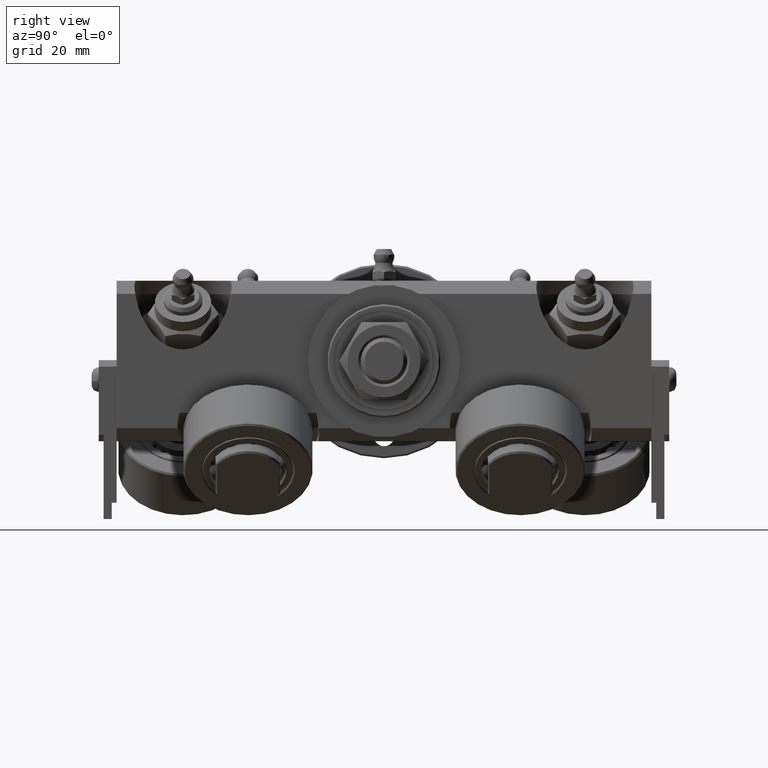
[diagram: clean part render]
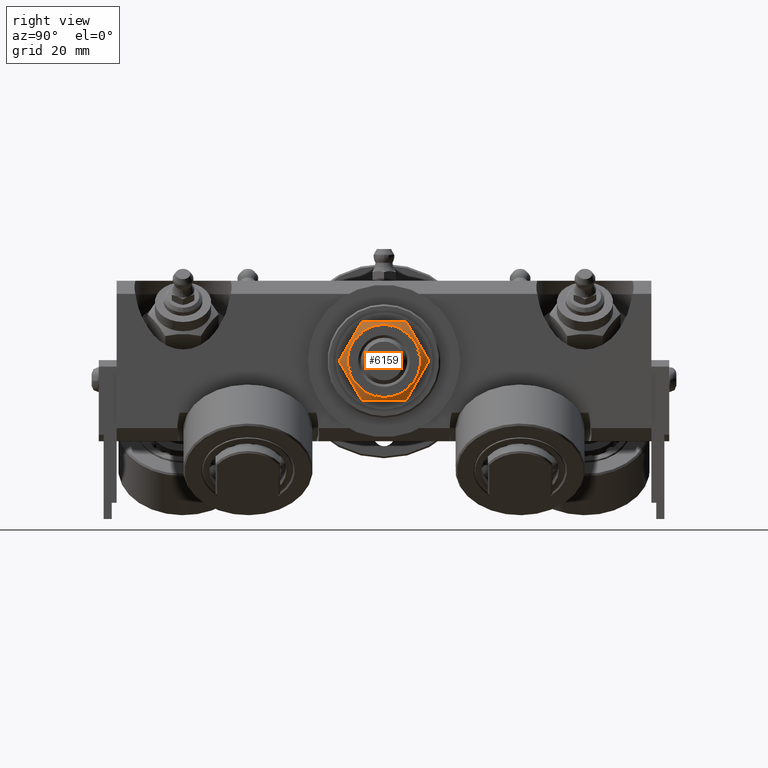
[diagram: same view with one face highlighted and labeled with its STEP entity id]
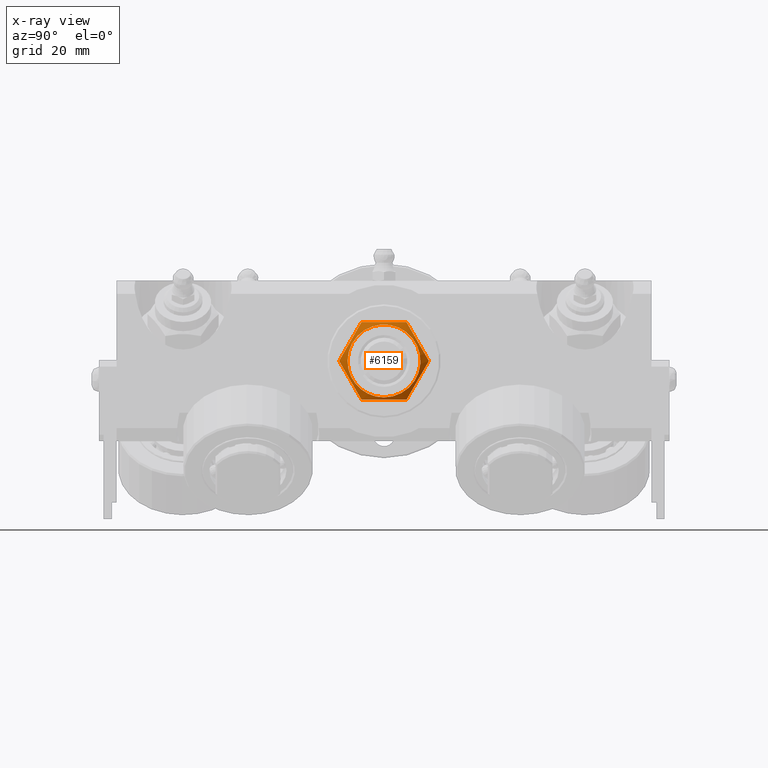
[diagram: x-ray of the same camera — body ghosted, the highlighted face saturated]
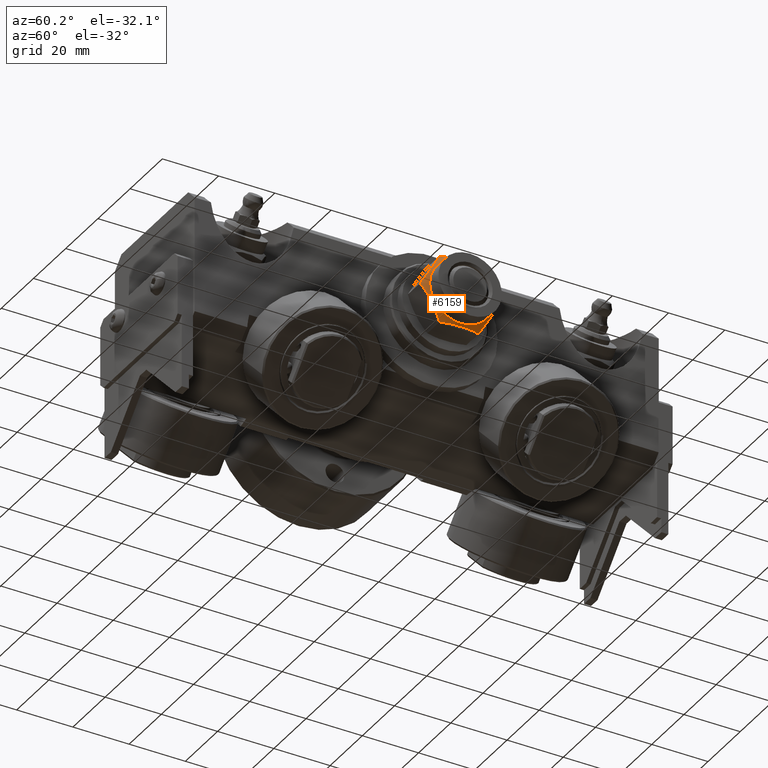
[diagram: same view with one face highlighted and labeled with its STEP entity id]
A machine part, right view. The second image highlights one B-rep face of the part: STEP entity #6159.
The next image is the same camera in x-ray: the body ghosted, the highlighted face saturated — about 0% of this face is hidden behind the body in this view.
A second angle (auxiliary view) of the same face is appended — the face is thin or edge-on in the first view.
In plain terms, the highlighted conical surface has half-angle 60 deg.
Its self-contained STEP definition (entity closure, byte-faithful):
#152=(
BOUNDED_CURVE()
B_SPLINE_CURVE(2,(#12515,#12516,#12517),.UNSPECIFIED.,.F.,.F.)
B_SPLINE_CURVE_WITH_KNOTS((3,3),(0.,1.4021233656935),.UNSPECIFIED.)
CURVE()
GEOMETRIC_REPRESENTATION_ITEM()
RATIONAL_B_SPLINE_CURVE((1.,1.15470053837926,1.))
REPRESENTATION_ITEM('')
);
#153=(
BOUNDED_CURVE()
B_SPLINE_CURVE(2,(#12519,#12520,#12521),.UNSPECIFIED.,.F.,.F.)
B_SPLINE_CURVE_WITH_KNOTS((3,3),(0.,1.4021233656935),.UNSPECIFIED.)
CURVE()
GEOMETRIC_REPRESENTATION_ITEM()
RATIONAL_B_SPLINE_CURVE((1.,1.15470053837925,1.))
REPRESENTATION_ITEM('')
);
#154=(
BOUNDED_CURVE()
B_SPLINE_CURVE(2,(#12523,#12524,#12525),.UNSPECIFIED.,.F.,.F.)
B_SPLINE_CURVE_WITH_KNOTS((3,3),(0.,1.4021233656935),.UNSPECIFIED.)
CURVE()
GEOMETRIC_REPRESENTATION_ITEM()
RATIONAL_B_SPLINE_CURVE((1.,1.15470053837924,1.))
REPRESENTATION_ITEM('')
);
#155=(
BOUNDED_CURVE()
B_SPLINE_CURVE(2,(#12527,#12528,#12529),.UNSPECIFIED.,.F.,.F.)
B_SPLINE_CURVE_WITH_KNOTS((3,3),(0.,1.4021233656935),.UNSPECIFIED.)
CURVE()
GEOMETRIC_REPRESENTATION_ITEM()
RATIONAL_B_SPLINE_CURVE((1.,1.15470053837925,1.))
REPRESENTATION_ITEM('')
);
#156=(
BOUNDED_CURVE()
B_SPLINE_CURVE(2,(#12531,#12532,#12533),.UNSPECIFIED.,.F.,.F.)
B_SPLINE_CURVE_WITH_KNOTS((3,3),(0.,1.4021233656935),.UNSPECIFIED.)
CURVE()
GEOMETRIC_REPRESENTATION_ITEM()
RATIONAL_B_SPLINE_CURVE((1.,1.15470053837925,1.))
REPRESENTATION_ITEM('')
);
#157=(
BOUNDED_CURVE()
B_SPLINE_CURVE(2,(#12534,#12535,#12536),.UNSPECIFIED.,.F.,.F.)
B_SPLINE_CURVE_WITH_KNOTS((3,3),(0.,1.4021233656935),.UNSPECIFIED.)
CURVE()
GEOMETRIC_REPRESENTATION_ITEM()
RATIONAL_B_SPLINE_CURVE((1.,1.15470053837925,1.))
REPRESENTATION_ITEM('')
);
#346=CONICAL_SURFACE('',#7235,12.5532032302755,1.0471975511966);
#881=FACE_OUTER_BOUND('',#1295,.T.);
#1295=EDGE_LOOP('',(#5316,#5317,#5318,#5319,#5320,#5321,#5322,#5323,#5324,
#5325));
#1682=CIRCLE('',#7236,11.25);
#1683=CIRCLE('',#7237,11.25);
#2062=LINE('',#12513,#2410);
#2410=VECTOR('',#8739,12.5532032302755);
#2992=VERTEX_POINT('',#12509);
#2993=VERTEX_POINT('',#12510);
#2994=VERTEX_POINT('',#12512);
#2995=VERTEX_POINT('',#12514);
#2996=VERTEX_POINT('',#12518);
#2997=VERTEX_POINT('',#12522);
#2998=VERTEX_POINT('',#12526);
#2999=VERTEX_POINT('',#12530);
#3794=EDGE_CURVE('',#2992,#2993,#1682,.T.);
#3795=EDGE_CURVE('',#2993,#2994,#2062,.T.);
#3796=EDGE_CURVE('',#2995,#2994,#152,.T.);
#3797=EDGE_CURVE('',#2996,#2995,#153,.T.);
#3798=EDGE_CURVE('',#2997,#2996,#154,.T.);
#3799=EDGE_CURVE('',#2998,#2997,#155,.T.);
#3800=EDGE_CURVE('',#2999,#2998,#156,.T.);
#3801=EDGE_CURVE('',#2994,#2999,#157,.T.);
#3802=EDGE_CURVE('',#2993,#2992,#1683,.T.);
#5316=ORIENTED_EDGE('',*,*,#3794,.T.);
#5317=ORIENTED_EDGE('',*,*,#3795,.T.);
#5318=ORIENTED_EDGE('',*,*,#3796,.F.);
#5319=ORIENTED_EDGE('',*,*,#3797,.F.);
#5320=ORIENTED_EDGE('',*,*,#3798,.F.);
#5321=ORIENTED_EDGE('',*,*,#3799,.F.);
#5322=ORIENTED_EDGE('',*,*,#3800,.F.);
#5323=ORIENTED_EDGE('',*,*,#3801,.F.);
#5324=ORIENTED_EDGE('',*,*,#3795,.F.);
#5325=ORIENTED_EDGE('',*,*,#3802,.T.);
#6159=ADVANCED_FACE('',(#881),#346,.T.);
#7235=AXIS2_PLACEMENT_3D('',#12508,#8735,#8736);
#7236=AXIS2_PLACEMENT_3D('',#12511,#8737,#8738);
#7237=AXIS2_PLACEMENT_3D('',#12537,#8740,#8741);
#8735=DIRECTION('center_axis',(-1.,0.,0.));
#8736=DIRECTION('ref_axis',(8.0141987273291E-17,1.,0.));
#8737=DIRECTION('center_axis',(-1.,0.,0.));
#8738=DIRECTION('ref_axis',(0.,0.,1.));
#8739=DIRECTION('',(-0.5,-0.866025403784439,1.06057523872491E-16));
#8740=DIRECTION('center_axis',(-1.,0.,0.));
#8741=DIRECTION('ref_axis',(0.,0.,1.));
#12508=CARTESIAN_POINT('Origin',(9.74759526419165,0.,0.));
#12509=CARTESIAN_POINT('',(10.5,1.37772764904077E-15,-11.25));
#12510=CARTESIAN_POINT('',(10.5,-11.25,1.37772764904077E-15));
#12511=CARTESIAN_POINT('Origin',(10.5,0.,0.));
#12512=CARTESIAN_POINT('',(8.99519052838329,-13.856406460551,-1.55431223447522E-14));
#12513=CARTESIAN_POINT('',(9.74759526419165,-12.5532032302755,1.53732401550031E-15));
#12514=CARTESIAN_POINT('',(8.99519052838329,-6.92820323027554,-12.));
#12515=CARTESIAN_POINT('Ctrl Pts',(8.99519052838329,-6.92820323027554,-12.));
#12516=CARTESIAN_POINT('Ctrl Pts',(10.9951905283833,-10.3923048454133,-6.));
#12517=CARTESIAN_POINT('Ctrl Pts',(8.99519052838329,-13.856406460551,-1.8382202385563E-14));
#12518=CARTESIAN_POINT('',(8.99519052838329,6.92820323027553,-12.));
#12519=CARTESIAN_POINT('Ctrl Pts',(8.99519052838329,6.92820323027546,-12.));
#12520=CARTESIAN_POINT('Ctrl Pts',(10.9951905283833,-1.72084568816899E-14,
-12.));
#12521=CARTESIAN_POINT('Ctrl Pts',(8.99519052838329,-6.92820323027549,-12.));
#12522=CARTESIAN_POINT('',(8.99519052838329,13.856406460551,0.));
#12523=CARTESIAN_POINT('Ctrl Pts',(8.99519052838329,13.856406460551,2.45096031807507E-15));
#12524=CARTESIAN_POINT('Ctrl Pts',(10.9951905283833,10.3923048454133,-5.99999999999999));
#12525=CARTESIAN_POINT('Ctrl Pts',(8.99519052838329,6.92820323027553,-12.));
#12526=CARTESIAN_POINT('',(8.99519052838329,6.92820323027552,12.));
#12527=CARTESIAN_POINT('Ctrl Pts',(8.99519052838329,6.92820323027551,12.));
#12528=CARTESIAN_POINT('Ctrl Pts',(10.9951905283833,10.3923048454133,6.));
#12529=CARTESIAN_POINT('Ctrl Pts',(8.99519052838329,13.856406460551,-8.57836111326274E-15));
#12530=CARTESIAN_POINT('',(8.99519052838329,-6.92820323027552,12.));
#12531=CARTESIAN_POINT('Ctrl Pts',(8.99519052838329,-6.92820323027552,12.));
#12532=CARTESIAN_POINT('Ctrl Pts',(10.9951905283833,0.,12.));
#12533=CARTESIAN_POINT('Ctrl Pts',(8.99519052838329,6.92820323027552,12.));
#12534=CARTESIAN_POINT('Ctrl Pts',(8.99519052838329,-13.856406460551,-9.80384127230027E-15));
#12535=CARTESIAN_POINT('Ctrl Pts',(10.9951905283833,-10.3923048454133,5.99999999999999));
#12536=CARTESIAN_POINT('Ctrl Pts',(8.99519052838329,-6.92820323027552,12.));
#12537=CARTESIAN_POINT('Origin',(10.5,0.,0.));